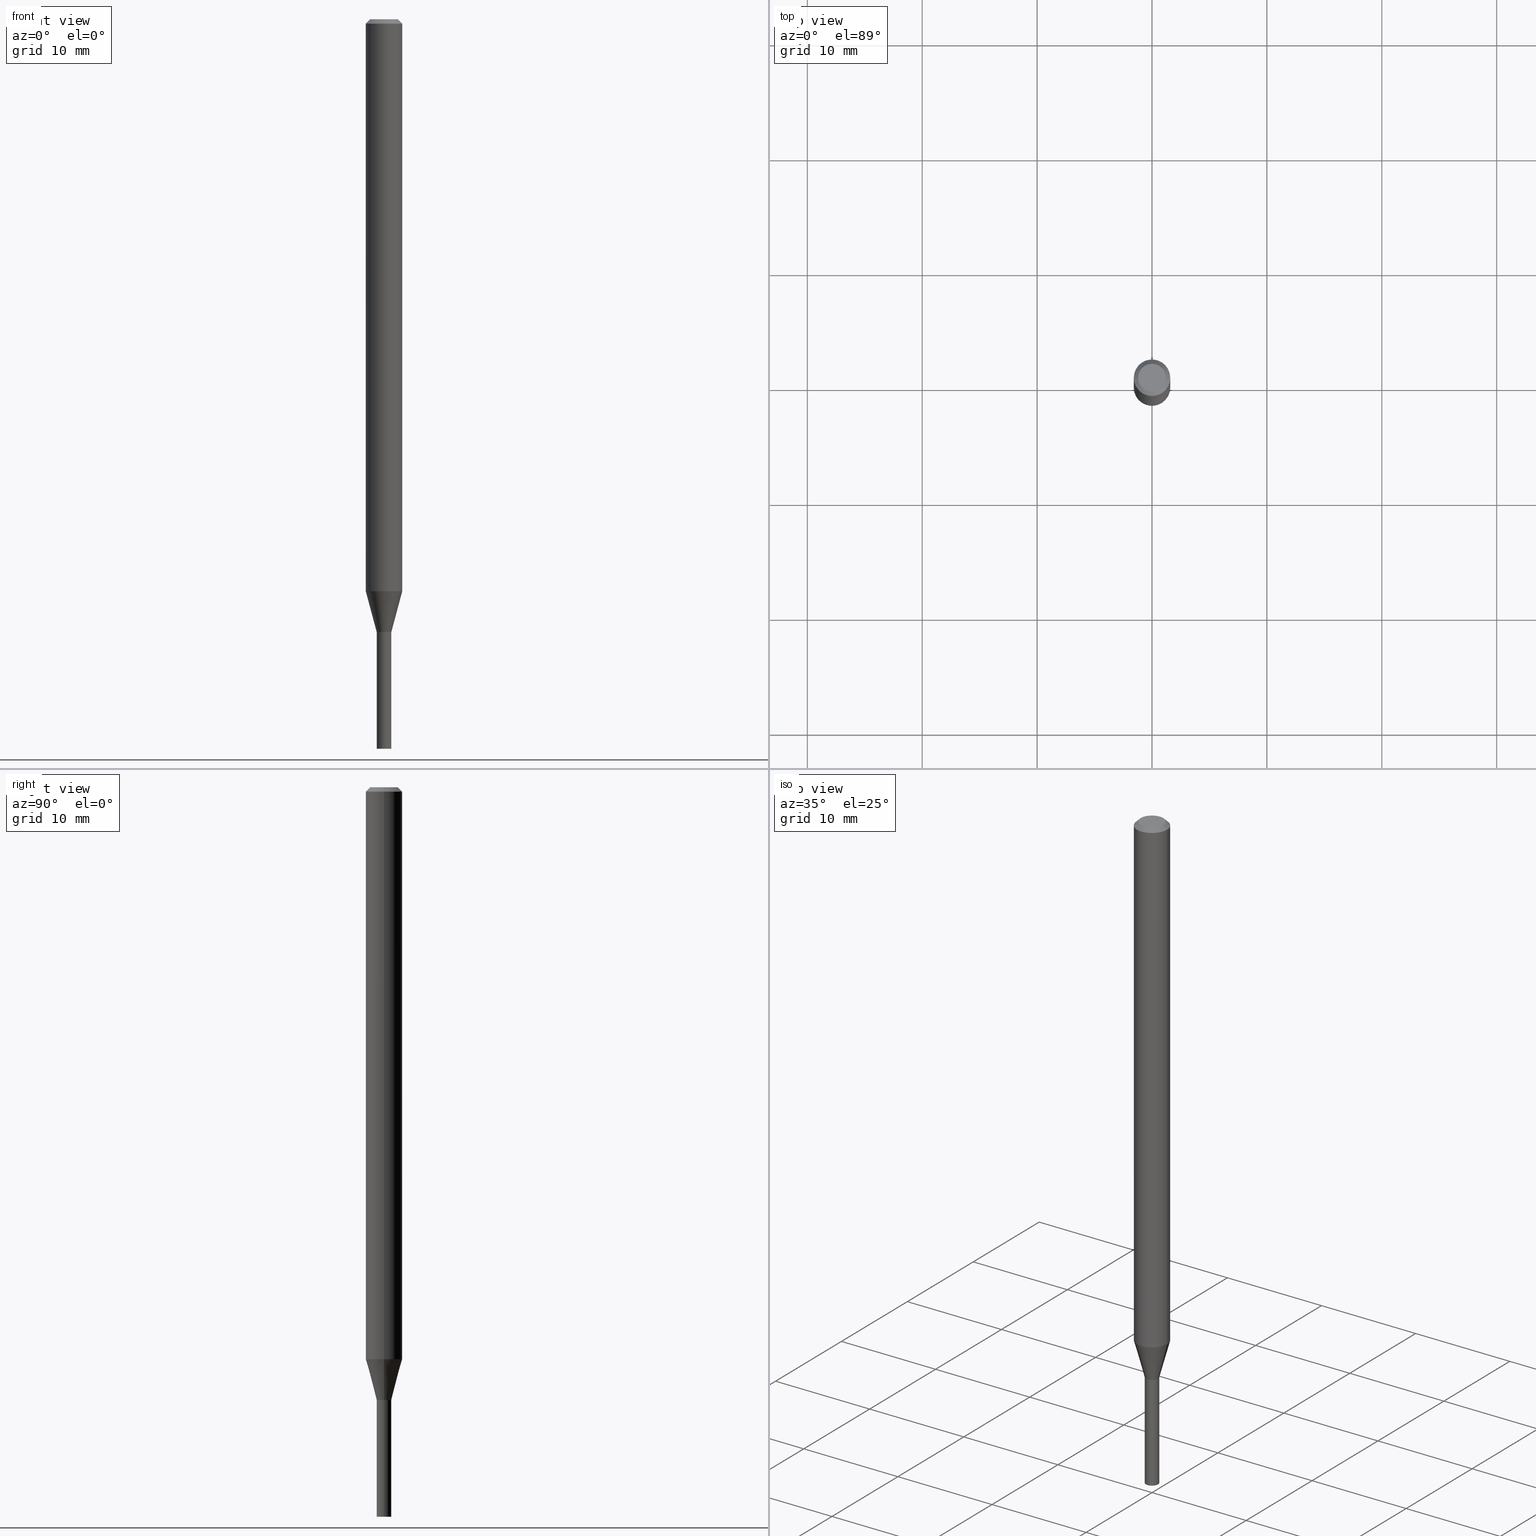
[diagram: canonical four-view strip — front | top / right | iso, engineering-drawing reading convention]
A machine part, canonical four-view strip (front | top / right | iso — engineering-drawing reading convention). The complete STEP part file that produces these views, byte-faithful:
ISO-10303-21;
HEADER;
FILE_DESCRIPTION (( 'STEP AP203' ),
    '1' );
FILE_NAME ('01265.STEP',
    '2024-03-20T00:45:13',
    ( '' ),
    ( '' ),
    'SwSTEP 2.0',
    'SolidWorks 2023',
    '' );
FILE_SCHEMA (( 'CONFIG_CONTROL_DESIGN' ));
ENDSEC;

DATA;
#1 = CLOSED_SHELL ( 'NONE', ( #166, #439, #12, #46 ) ) ;
#2 = AXIS2_PLACEMENT_3D ( 'NONE', #19, #84, #307 ) ;
#3 = DIRECTION ( 'NONE',  ( 1.000000000000000000, -6.982962677686267499E-15, 4.876176775795936353E-29 ) ) ;
#4 = ORGANIZATION ( 'UNSPECIFIED', 'UNSPECIFIED', '' ) ;
#5 = CARTESIAN_POINT ( 'NONE',  ( 3.668203209277705088E-31, -5.237222008264718399E-17, -0.01499999999999999944 ) ) ;
#6 = APPROVAL_STATUS ( 'not_yet_approved' ) ;
#7 = APPROVAL_ROLE ( '' ) ;
#8 = ORIENTED_EDGE ( 'NONE', *, *, #315, .F. ) ;
#9 = DIRECTION ( 'NONE',  ( 2.445468806185136597E-29, -3.491481338843145583E-15, -1.000000000000000000 ) ) ;
#10 = COORDINATED_UNIVERSAL_TIME_OFFSET ( 5, 0, .BEHIND. ) ;
#11 = CYLINDRICAL_SURFACE ( 'NONE', #319, 0.02499999999999992853 ) ;
#12 = ADVANCED_FACE ( 'NONE', ( #162 ), #302, .T. ) ;
#13 = PERSON_AND_ORGANIZATION_ROLE ( 'classification_officer' ) ;
#14 = AXIS2_PLACEMENT_3D ( 'NONE', #118, #80, #224 ) ;
#15 = AXIS2_PLACEMENT_3D ( 'NONE', #244, #137, #108 ) ;
#16 = CC_DESIGN_SECURITY_CLASSIFICATION ( #349, ( #87 ) ) ;
#17 = DIRECTION ( 'NONE',  ( -2.445468806185136877E-29, 3.491481338843145188E-15, 1.000000000000000000 ) ) ;
#18 = DIRECTION ( 'NONE',  ( 1.000000000000000000, -6.982962677686262766E-15, 0.000000000000000000 ) ) ;
#19 = CARTESIAN_POINT ( 'NONE',  ( 0.000000000000000000, 0.000000000000000000, 0.000000000000000000 ) ) ;
#20 = CARTESIAN_POINT ( 'NONE',  ( -0.04749999999999999362, 3.578768372314226776E-16, 9.272709596012951076E-16 ) ) ;
#21 = CARTESIAN_POINT ( 'NONE',  ( 3.668203209277705088E-31, -5.237222008264718399E-17, -0.01499999999999999944 ) ) ;
#22 = VERTEX_POINT ( 'NONE', #279 ) ;
#23 = DIRECTION ( 'NONE',  ( 2.438088387897960049E-29, -3.491481338843145188E-15, -1.000000000000000000 ) ) ;
#24 = CYLINDRICAL_SURFACE ( 'NONE', #311, 0.02499999999999992853 ) ;
#25 = CARTESIAN_POINT ( 'NONE',  ( 0.02499999999999992853, -1.745740669421561747E-16, 1.219044193948980445E-30 ) ) ;
#26 = CARTESIAN_POINT ( 'NONE',  ( 5.135484492988787526E-29, -7.332110811570605290E-15, -2.100000000000000089 ) ) ;
#27 = VECTOR ( 'NONE', #127, 39.37007874015748143 ) ;
#28 = FACE_OUTER_BOUND ( 'NONE', #97, .T. ) ;
#29 = VECTOR ( 'NONE', #17, 39.37007874015748143 ) ;
#30 = DIRECTION ( 'NONE',  ( -2.445468806185136597E-29, 3.491481338843145583E-15, 1.000000000000000000 ) ) ;
#31 = CC_DESIGN_APPROVAL ( #305, ( #442 ) ) ;
#32 = DIRECTION ( 'NONE',  ( -2.445468806185136597E-29, 3.491481338843145583E-15, 1.000000000000000000 ) ) ;
#33 = CARTESIAN_POINT ( 'NONE',  ( -0.06250000000000000000, -3.003832573159543008E-15, -0.01499999999999999944 ) ) ;
#34 =( NAMED_UNIT ( * ) SI_UNIT ( $, .STERADIAN. ) SOLID_ANGLE_UNIT ( ) );
#35 = EDGE_CURVE ( 'NONE', #195, #460, #196, .T. ) ;
#36 = CARTESIAN_POINT ( 'NONE',  ( 6.113672015462842613E-29, -8.728703347107864943E-15, -2.500000000000000000 ) ) ;
#37 = CIRCLE ( 'NONE', #416, 0.06250000000000000000 ) ;
#38 = LOCAL_TIME ( 20, 45, 13.00000000000000000, #329 ) ;
#39 = COORDINATED_UNIVERSAL_TIME_OFFSET ( 5, 0, .BEHIND. ) ;
#40 = DATE_TIME_ROLE ( 'classification_date' ) ;
#41 = EDGE_LOOP ( 'NONE', ( #425, #429, #203, #277 ) ) ;
#42 = AXIS2_PLACEMENT_3D ( 'NONE', #298, #184, #152 ) ;
#43 = CONICAL_SURFACE ( 'NONE', #440, 0.02450000000000000441, 0.7853981633969275844 ) ;
#44 =( GEOMETRIC_REPRESENTATION_CONTEXT ( 3 ) GLOBAL_UNCERTAINTY_ASSIGNED_CONTEXT ( ( #225 ) ) GLOBAL_UNIT_ASSIGNED_CONTEXT ( ( #428, #361, #34 ) ) REPRESENTATION_CONTEXT ( 'NONE', 'WORKASPACE' ) );
#45 = SHAPE_DEFINITION_REPRESENTATION ( #120, #267 ) ;
#46 = ADVANCED_FACE ( 'NONE', ( #354 ), #103, .F. ) ;
#47 = EDGE_CURVE ( 'NONE', #106, #426, #310, .T. ) ;
#48 = AXIS2_PLACEMENT_3D ( 'NONE', #448, #454, #413 ) ;
#49 = DIRECTION ( 'NONE',  ( -2.445468806185136597E-29, 3.491481338843145583E-15, 1.000000000000000000 ) ) ;
#50 = ORIENTED_EDGE ( 'NONE', *, *, #344, .F. ) ;
#51 = DIRECTION ( 'NONE',  ( -2.445468806185136877E-29, 3.491481338843145188E-15, 1.000000000000000000 ) ) ;
#52 = ORIENTED_EDGE ( 'NONE', *, *, #376, .F. ) ;
#53 = DIRECTION ( 'NONE',  ( 0.7071067811865257013, -7.319954787623181892E-15, -0.7071067811865692221 ) ) ;
#54 = ORIENTED_EDGE ( 'NONE', *, *, #346, .T. ) ;
#55 = CIRCLE ( 'NONE', #328, 0.02500000000000000139 ) ;
#56 = AXIS2_PLACEMENT_3D ( 'NONE', #447, #411, #227 ) ;
#57 = DIRECTION ( 'NONE',  ( -2.445468806185136597E-29, 3.491481338843145583E-15, 1.000000000000000000 ) ) ;
#58 = EDGE_CURVE ( 'NONE', #147, #273, #124, .T. ) ;
#59 = ORIENTED_EDGE ( 'NONE', *, *, #101, .T. ) ;
#60 = LINE ( 'NONE', #387, #179 ) ;
#61 = VERTEX_POINT ( 'NONE', #33 ) ;
#62 = CARTESIAN_POINT ( 'NONE',  ( 0.04749999999999999362, -4.035134999187561860E-16, 9.272709596013002351E-16 ) ) ;
#63 = CARTESIAN_POINT ( 'NONE',  ( 0.000000000000000000, 0.000000000000000000, 0.000000000000000000 ) ) ;
#64 = EDGE_CURVE ( 'NONE', #460, #457, #367, .T. ) ;
#65 = DIRECTION ( 'NONE',  ( -2.438088387897960049E-29, 3.491481338843145188E-15, 1.000000000000000000 ) ) ;
#66 = AXIS2_PLACEMENT_3D ( 'NONE', #306, #123, #259 ) ;
#67 = VERTEX_POINT ( 'NONE', #322 ) ;
#68 = PLANE ( 'NONE',  #15 ) ;
#69 = ORIENTED_EDGE ( 'NONE', *, *, #320, .T. ) ;
#70 = APPLICATION_CONTEXT ( 'configuration controlled 3d designs of mechanical parts and assemblies' ) ;
#71 = DESIGN_CONTEXT ( 'detailed design', #221, 'design' ) ;
#72 = EDGE_CURVE ( 'NONE', #455, #390, #219, .T. ) ;
#73 = CARTESIAN_POINT ( 'NONE',  ( 0.06250000000000000000, -4.364351673553916694E-16, 3.047610484872459871E-30 ) ) ;
#74 = CALENDAR_DATE ( 2024, 19, 3 ) ;
#75 = ORIENTED_EDGE ( 'NONE', *, *, #366, .T. ) ;
#76 = PRODUCT ( '01265', '01265', '', ( #105 ) ) ;
#77 = DIRECTION ( 'NONE',  ( 1.000000000000000000, -6.982962677686266711E-15, 4.876176775795935793E-29 ) ) ;
#78 = COORDINATED_UNIVERSAL_TIME_OFFSET ( 5, 0, .BEHIND. ) ;
#79 = AXIS2_PLACEMENT_3D ( 'NONE', #129, #232, #380 ) ;
#80 = DIRECTION ( 'NONE',  ( -2.445468806185136597E-29, 3.491481338843145583E-15, 1.000000000000000000 ) ) ;
#81 = FACE_OUTER_BOUND ( 'NONE', #269, .T. ) ;
#82 = PERSON_AND_ORGANIZATION ( #384, #4 ) ;
#83 = DIMENSIONAL_EXPONENTS ( 1.000000000000000000, 0.000000000000000000, 0.000000000000000000, 0.000000000000000000, 0.000000000000000000, 0.000000000000000000, 0.000000000000000000 ) ;
#84 = DIRECTION ( 'NONE',  ( -2.445468806185136597E-29, 3.491481338843145583E-15, 1.000000000000000000 ) ) ;
#85 = DIRECTION ( 'NONE',  ( -2.445468806185136597E-29, 3.491481338843145583E-15, 1.000000000000000000 ) ) ;
#86 = AXIS2_PLACEMENT_3D ( 'NONE', #351, #57, #153 ) ;
#87 = PRODUCT_DEFINITION_FORMATION_WITH_SPECIFIED_SOURCE ( 'ANY', '', #76, .NOT_KNOWN. ) ;
#88 = CARTESIAN_POINT ( 'NONE',  ( 0.06250000000000000000, -4.811533449433679005E-16, -0.01499999999999999944 ) ) ;
#89 = CARTESIAN_POINT ( 'NONE',  ( -0.02450000000000000441, -7.158027841309382562E-15, -2.100000000000000089 ) ) ;
#90 = FACE_OUTER_BOUND ( 'NONE', #236, .T. ) ;
#91 = ORIENTED_EDGE ( 'NONE', *, *, #282, .T. ) ;
#92 = LINE ( 'NONE', #268, #206 ) ;
#93 = ORIENTED_EDGE ( 'NONE', *, *, #376, .T. ) ;
#94 = CIRCLE ( 'NONE', #66, 0.02500000000000000139 ) ;
#95 = CARTESIAN_POINT ( 'NONE',  ( 5.135484492988787526E-29, -7.332110811570605290E-15, -2.100000000000000089 ) ) ;
#96 = ORIENTED_EDGE ( 'NONE', *, *, #372, .F. ) ;
#97 = EDGE_LOOP ( 'NONE', ( #59, #202, #102, #52 ) ) ;
#98 = EDGE_LOOP ( 'NONE', ( #54, #69, #199, #419 ) ) ;
#99 = DIRECTION ( 'NONE',  ( 1.000000000000000000, 0.000000000000000000, 0.000000000000000000 ) ) ;
#100 = ORIENTED_EDGE ( 'NONE', *, *, #35, .T. ) ;
#101 = EDGE_CURVE ( 'NONE', #67, #190, #55, .T. ) ;
#102 = ORIENTED_EDGE ( 'NONE', *, *, #212, .F. ) ;
#103 = PLANE ( 'NONE',  #42 ) ;
#104 = MANIFOLD_SOLID_BREP ( 'Body-Move/Copy2[1]', #1 ) ;
#105 = MECHANICAL_CONTEXT ( 'NONE', #70, 'mechanical' ) ;
#106 = VERTEX_POINT ( 'NONE', #453 ) ;
#107 = ADVANCED_FACE ( 'NONE', ( #237 ), #43, .T. ) ;
#108 = DIRECTION ( 'NONE',  ( 1.000000000000000000, -6.982962677686265922E-15, 4.876176775795935793E-29 ) ) ;
#109 = APPROVAL_PERSON_ORGANIZATION ( #297, #412, #7 ) ;
#110 = FACE_OUTER_BOUND ( 'NONE', #261, .T. ) ;
#111 = DIRECTION ( 'NONE',  ( -2.445468806185136597E-29, 3.491481338843145583E-15, 1.000000000000000000 ) ) ;
#112 = ADVANCED_FACE ( 'NONE', ( #340 ), #11, .F. ) ;
#113 = ORIENTED_EDGE ( 'NONE', *, *, #47, .F. ) ;
#114 = AXIS2_PLACEMENT_3D ( 'NONE', #217, #432, #430 ) ;
#115 = ADVANCED_FACE ( 'NONE', ( #81 ), #299, .T. ) ;
#116 = COORDINATED_UNIVERSAL_TIME_OFFSET ( 5, 0, .BEHIND. ) ;
#117 = CC_DESIGN_PERSON_AND_ORGANIZATION_ASSIGNMENT ( #148, #13, ( #349 ) ) ;
#118 = CARTESIAN_POINT ( 'NONE',  ( 5.135484492988787526E-29, -7.332110811570606867E-15, -2.100000000000000089 ) ) ;
#119 = CONICAL_SURFACE ( 'NONE', #434, 0.02500000000000020609, 0.2617993877991500740 ) ;
#120 = PRODUCT_DEFINITION_SHAPE ( 'NONE', 'NONE',  #442 ) ;
#121 = CALENDAR_DATE ( 2024, 19, 3 ) ;
#122 = LINE ( 'NONE', #337, #29 ) ;
#123 = DIRECTION ( 'NONE',  ( -2.445468806185136597E-29, 3.491481338843145583E-15, 1.000000000000000000 ) ) ;
#124 = LINE ( 'NONE', #177, #157 ) ;
#125 = CARTESIAN_POINT ( 'NONE',  ( 3.316907271900976096E-16, 0.04749999999999999362, 2.977901162055994392E-16 ) ) ;
#126 = APPROVAL_PERSON_ORGANIZATION ( #287, #305, #174 ) ;
#127 = DIRECTION ( 'NONE',  ( -2.445468806185136877E-29, 3.491481338843145188E-15, 1.000000000000000000 ) ) ;
#128 = ORIENTED_EDGE ( 'NONE', *, *, #72, .T. ) ;
#129 = CARTESIAN_POINT ( 'NONE',  ( 5.135484492988787526E-29, -7.332110811570606867E-15, -2.100000000000000089 ) ) ;
#130 = ORIENTED_EDGE ( 'NONE', *, *, #339, .F. ) ;
#131 = DIRECTION ( 'NONE',  ( -1.000000000000000000, 6.982962677686265922E-15, -4.876176775795935793E-29 ) ) ;
#132 = ORIENTED_EDGE ( 'NONE', *, *, #315, .T. ) ;
#133 = EDGE_CURVE ( 'NONE', #426, #460, #233, .T. ) ;
#134 = CIRCLE ( 'NONE', #167, 0.06250000000000000000 ) ;
#135 = CYLINDRICAL_SURFACE ( 'NONE', #398, 0.06250000000000000000 ) ;
#136 = ORIENTED_EDGE ( 'NONE', *, *, #207, .F. ) ;
#137 = DIRECTION ( 'NONE',  ( -2.438088387897960049E-29, 3.491481338843145188E-15, 1.000000000000000000 ) ) ;
#138 = CYLINDRICAL_SURFACE ( 'NONE', #389, 0.02500000000000000139 ) ;
#139 = ORIENTED_EDGE ( 'NONE', *, *, #344, .T. ) ;
#140 = APPLICATION_PROTOCOL_DEFINITION ( 'international standard', 'config_control_design', 1994, #221 ) ;
#141 = EDGE_CURVE ( 'NONE', #356, #388, #247, .T. ) ;
#142 = DIRECTION ( 'NONE',  ( 1.000000000000000000, -6.982962677686266711E-15, 4.876176775795935793E-29 ) ) ;
#143 = DIRECTION ( 'NONE',  ( -2.445468806185136597E-29, 3.491481338843145583E-15, 1.000000000000000000 ) ) ;
#144 = APPROVAL_DATE_TIME ( #444, #305 ) ;
#145 = EDGE_CURVE ( 'NONE', #195, #356, #325, .T. ) ;
#146 = AXIS2_PLACEMENT_3D ( 'NONE', #187, #49, #240 ) ;
#147 = VERTEX_POINT ( 'NONE', #176 ) ;
#148 = PERSON_AND_ORGANIZATION ( #384, #4 ) ;
#149 = EDGE_LOOP ( 'NONE', ( #8, #50, #161, #312 ) ) ;
#150 = CIRCLE ( 'NONE', #48, 0.06250000000000000000 ) ;
#151 = ADVANCED_FACE ( 'NONE', ( #330 ), #175, .T. ) ;
#152 = DIRECTION ( 'NONE',  ( -1.000000000000000000, 6.982962677686265922E-15, -4.876176775795935793E-29 ) ) ;
#153 = DIRECTION ( 'NONE',  ( 1.000000000000000000, -6.982962677686275388E-15, 0.000000000000000000 ) ) ;
#154 = CARTESIAN_POINT ( 'NONE',  ( 0.02500000000000020609, -7.506684878512763535E-15, -2.100000000000000089 ) ) ;
#155 = FACE_OUTER_BOUND ( 'NONE', #266, .T. ) ;
#156 = EDGE_LOOP ( 'NONE', ( #464, #132, #401, #170 ) ) ;
#157 = VECTOR ( 'NONE', #169, 39.37007874015747433 ) ;
#158 = ORIENTED_EDGE ( 'NONE', *, *, #141, .T. ) ;
#159 = CIRCLE ( 'NONE', #56, 0.02500000000000000139 ) ;
#160 = CARTESIAN_POINT ( 'NONE',  ( -0.06250000000000000000, 4.440892098500626162E-16, -3.074334431409316114E-30 ) ) ;
#161 = ORIENTED_EDGE ( 'NONE', *, *, #296, .T. ) ;
#162 = FACE_OUTER_BOUND ( 'NONE', #343, .T. ) ;
#163 = DIRECTION ( 'NONE',  ( 1.000000000000000000, -6.982962677686254878E-15, 0.000000000000000000 ) ) ;
#164 = ORIENTED_EDGE ( 'NONE', *, *, #200, .T. ) ;
#165 = EDGE_CURVE ( 'NONE', #457, #460, #338, .T. ) ;
#166 = ADVANCED_FACE ( 'NONE', ( #28 ), #138, .T. ) ;
#167 = AXIS2_PLACEMENT_3D ( 'NONE', #193, #238, #18 ) ;
#168 = LENGTH_MEASURE_WITH_UNIT ( LENGTH_MEASURE( 0.02539999999999999897 ), #362 );
#169 = DIRECTION ( 'NONE',  ( -0.2588190451025213501, 5.211531920934551042E-15, 0.9659258262890682012 ) ) ;
#170 = ORIENTED_EDGE ( 'NONE', *, *, #296, .F. ) ;
#171 = CARTESIAN_POINT ( 'NONE',  ( 0.02499999999999965791, -7.504939137843339665E-15, -2.099499999999999922 ) ) ;
#172 = CARTESIAN_POINT ( 'NONE',  ( 0.000000000000000000, 0.000000000000000000, 0.000000000000000000 ) ) ;
#173 = DIRECTION ( 'NONE',  ( 1.000000000000000000, -6.982962677686273810E-15, 0.000000000000000000 ) ) ;
#174 = APPROVAL_ROLE ( '' ) ;
#175 = CONICAL_SURFACE ( 'NONE', #263, 0.06250000000000000000, 0.7853981633974175258 ) ;
#176 = CARTESIAN_POINT ( 'NONE',  ( -0.02500000000000020609, -6.776928631858541016E-15, -2.100000000000000089 ) ) ;
#177 = CARTESIAN_POINT ( 'NONE',  ( -0.02500000000000020609, -7.154475127630579297E-15, -2.100000000000000089 ) ) ;
#178 = ORIENTED_EDGE ( 'NONE', *, *, #145, .T. ) ;
#179 = VECTOR ( 'NONE', #345, 39.37007874015748854 ) ;
#180 = EDGE_LOOP ( 'NONE', ( #139, #128 ) ) ;
#181 = PERSON_AND_ORGANIZATION_ROLE ( 'creator' ) ;
#182 = CALENDAR_DATE ( 2024, 19, 3 ) ;
#183 = ORIENTED_EDGE ( 'NONE', *, *, #320, .F. ) ;
#184 = DIRECTION ( 'NONE',  ( 2.438088387897960049E-29, -3.491481338843145188E-15, -1.000000000000000000 ) ) ;
#185 = CIRCLE ( 'NONE', #86, 0.02500000000000020609 ) ;
#186 = LINE ( 'NONE', #160, #239 ) ;
#187 = CARTESIAN_POINT ( 'NONE',  ( 5.135484492988787526E-29, -7.332110811570606867E-15, -2.100000000000000089 ) ) ;
#188 = DIRECTION ( 'NONE',  ( 0.7071067811861793118, -2.468850131078399925E-15, 0.7071067811869157227 ) ) ;
#189 = CARTESIAN_POINT ( 'NONE',  ( -0.06249999999999999306, -6.399382136086501158E-15, -1.960048094716168254 ) ) ;
#190 = VERTEX_POINT ( 'NONE', #323 ) ;
#191 = VECTOR ( 'NONE', #188, 39.37007874015748143 ) ;
#192 = LOCAL_TIME ( 20, 45, 13.00000000000000000, #39 ) ;
#193 = CARTESIAN_POINT ( 'NONE',  ( 4.793236474250999839E-29, -6.843471345936563774E-15, -1.960048094716168254 ) ) ;
#194 = ORIENTED_EDGE ( 'NONE', *, *, #352, .F. ) ;
#195 = VERTEX_POINT ( 'NONE', #154 ) ;
#196 = LINE ( 'NONE', #25, #205 ) ;
#197 = DIRECTION ( 'NONE',  ( -2.445468806185136597E-29, 3.491481338843145583E-15, 1.000000000000000000 ) ) ;
#198 = CARTESIAN_POINT ( 'NONE',  ( 0.02500000000000000139, -7.506684878512761957E-15, -2.100000000000000089 ) ) ;
#199 = ORIENTED_EDGE ( 'NONE', *, *, #241, .F. ) ;
#200 = EDGE_CURVE ( 'NONE', #106, #457, #260, .T. ) ;
#201 = FACE_OUTER_BOUND ( 'NONE', #397, .T. ) ;
#202 = ORIENTED_EDGE ( 'NONE', *, *, #207, .T. ) ;
#203 = ORIENTED_EDGE ( 'NONE', *, *, #133, .T. ) ;
#204 = DIRECTION ( 'NONE',  ( -2.445468806185136877E-29, 3.491481338843145188E-15, 1.000000000000000000 ) ) ;
#205 = VECTOR ( 'NONE', #204, 39.37007874015748143 ) ;
#206 = VECTOR ( 'NONE', #51, 39.37007874015748143 ) ;
#207 = EDGE_CURVE ( 'NONE', #190, #22, #122, .T. ) ;
#208 = DIRECTION ( 'NONE',  ( 1.000000000000000000, -6.982962677686275388E-15, 0.000000000000000000 ) ) ;
#209 = DIRECTION ( 'NONE',  ( 1.000000000000000000, -6.982962677686267499E-15, 4.852736867747366768E-29 ) ) ;
#210 = ORIENTED_EDGE ( 'NONE', *, *, #58, .T. ) ;
#211 = APPROVAL_STATUS ( 'not_yet_approved' ) ;
#212 = EDGE_CURVE ( 'NONE', #314, #22, #159, .T. ) ;
#213 = CARTESIAN_POINT ( 'NONE',  ( -0.02499999999999965791, -7.152729386961161737E-15, -2.099499999999999922 ) ) ;
#214 = AXIS2_PLACEMENT_3D ( 'NONE', #437, #462, #280 ) ;
#215 = PRODUCT_RELATED_PRODUCT_CATEGORY ( 'detail', '', ( #76 ) ) ;
#216 = CC_DESIGN_PERSON_AND_ORGANIZATION_ASSIGNMENT ( #300, #258, ( #442 ) ) ;
#217 = CARTESIAN_POINT ( 'NONE',  ( 5.134261758585694724E-29, -7.330365070901184575E-15, -2.099499999999999922 ) ) ;
#218 = APPROVAL_DATE_TIME ( #443, #412 ) ;
#219 = CIRCLE ( 'NONE', #274, 0.04749999999999999362 ) ;
#220 = CIRCLE ( 'NONE', #275, 0.02500000000000020609 ) ;
#221 = APPLICATION_CONTEXT ( 'configuration controlled 3d designs of mechanical parts and assemblies' ) ;
#222 = LOCAL_TIME ( 20, 45, 13.00000000000000000, #78 ) ;
#223 = ADVANCED_FACE ( 'NONE', ( #415 ), #228, .F. ) ;
#224 = DIRECTION ( 'NONE',  ( 1.000000000000000000, -6.982962677686272233E-15, 0.000000000000000000 ) ) ;
#225 = UNCERTAINTY_MEASURE_WITH_UNIT (LENGTH_MEASURE( 1.000000000000000082E-05 ), #428, 'distance_accuracy_value', 'NONE');
#226 = PERSON_AND_ORGANIZATION ( #384, #4 ) ;
#227 = DIRECTION ( 'NONE',  ( 1.000000000000000000, -6.982962677686254878E-15, 0.000000000000000000 ) ) ;
#228 = PLANE ( 'NONE',  #229 ) ;
#229 = AXIS2_PLACEMENT_3D ( 'NONE', #125, #23, #131 ) ;
#230 = ADVANCED_FACE ( 'NONE', ( #155 ), #119, .T. ) ;
#231 = VECTOR ( 'NONE', #364, 39.37007874015747433 ) ;
#232 = DIRECTION ( 'NONE',  ( -2.445468806185136597E-29, 3.491481338843145583E-15, 1.000000000000000000 ) ) ;
#233 = LINE ( 'NONE', #382, #191 ) ;
#234 = CC_DESIGN_PERSON_AND_ORGANIZATION_ASSIGNMENT ( #82, #181, ( #87 ) ) ;
#235 = DIRECTION ( 'NONE',  ( 1.000000000000000000, -6.982962677686266711E-15, 4.876176775795935793E-29 ) ) ;
#236 = EDGE_LOOP ( 'NONE', ( #130, #371, #358, #391 ) ) ;
#237 = FACE_OUTER_BOUND ( 'NONE', #427, .T. ) ;
#238 = DIRECTION ( 'NONE',  ( -2.445468806185136597E-29, 3.491481338843145583E-15, 1.000000000000000000 ) ) ;
#239 = VECTOR ( 'NONE', #317, 39.37007874015748143 ) ;
#240 = DIRECTION ( 'NONE',  ( 1.000000000000000000, -6.982962677686272233E-15, 0.000000000000000000 ) ) ;
#241 = EDGE_CURVE ( 'NONE', #388, #61, #451, .T. ) ;
#242 = ORIENTED_EDGE ( 'NONE', *, *, #288, .T. ) ;
#243 = ORIENTED_EDGE ( 'NONE', *, *, #58, .F. ) ;
#244 = CARTESIAN_POINT ( 'NONE',  ( 6.194428952736783458E-29, -8.613054816532157721E-15, -2.500000000000000000 ) ) ;
#245 = DIRECTION ( 'NONE',  ( -2.445468806185136597E-29, 3.491481338843145583E-15, 1.000000000000000000 ) ) ;
#246 = EDGE_CURVE ( 'NONE', #147, #457, #341, .T. ) ;
#247 = LINE ( 'NONE', #73, #446 ) ;
#248 = CONICAL_SURFACE ( 'NONE', #146, 0.02450000000000000441, 0.7853981633969275844 ) ;
#249 = AXIS2_PLACEMENT_3D ( 'NONE', #326, #459, #99 ) ;
#250 = DIRECTION ( 'NONE',  ( 1.000000000000000000, -6.982962677686265922E-15, 4.876176775795935793E-29 ) ) ;
#251 = DIRECTION ( 'NONE',  ( 1.000000000000000000, -6.982962677686275388E-15, 0.000000000000000000 ) ) ;
#252 = APPROVAL_ROLE ( '' ) ;
#253 = CIRCLE ( 'NONE', #359, 0.04749999999999999362 ) ;
#254 = AXIS2_PLACEMENT_3D ( 'NONE', #369, #32, #251 ) ;
#255 = ADVANCED_FACE ( 'NONE', ( #90 ), #24, .F. ) ;
#256 = DATE_AND_TIME ( #182, #335 ) ;
#257 = VECTOR ( 'NONE', #414, 39.37007874015748143 ) ;
#258 = PERSON_AND_ORGANIZATION_ROLE ( 'creator' ) ;
#259 = DIRECTION ( 'NONE',  ( 1.000000000000000000, -6.982962677686254878E-15, 0.000000000000000000 ) ) ;
#260 = LINE ( 'NONE', #89, #257 ) ;
#261 = EDGE_LOOP ( 'NONE', ( #350, #381 ) ) ;
#262 = LINE ( 'NONE', #88, #407 ) ;
#263 = AXIS2_PLACEMENT_3D ( 'NONE', #5, #9, #331 ) ;
#264 = APPROVAL ( #6, 'UNSPECIFIED' ) ;
#265 = CARTESIAN_POINT ( 'NONE',  ( 5.135484492988787526E-29, -7.332110811570605290E-15, -2.100000000000000089 ) ) ;
#266 = EDGE_LOOP ( 'NONE', ( #243, #278, #178, #353 ) ) ;
#267 = ADVANCED_BREP_SHAPE_REPRESENTATION ( '01265', ( #104, #409, #249 ), #44 ) ;
#268 = CARTESIAN_POINT ( 'NONE',  ( 0.02500000000000000139, -1.745740669421566924E-16, 1.219044193948984123E-30 ) ) ;
#269 = EDGE_LOOP ( 'NONE', ( #183, #91, #158, #194 ) ) ;
#270 = ADVANCED_FACE ( 'NONE', ( #417 ), #248, .T. ) ;
#271 = CARTESIAN_POINT ( 'NONE',  ( 5.135484492988787526E-29, -7.332110811570606867E-15, -2.100000000000000089 ) ) ;
#272 = DIRECTION ( 'NONE',  ( -2.445468806185136597E-29, 3.491481338843145583E-15, 1.000000000000000000 ) ) ;
#273 = VERTEX_POINT ( 'NONE', #189 ) ;
#274 = AXIS2_PLACEMENT_3D ( 'NONE', #463, #143, #209 ) ;
#275 = AXIS2_PLACEMENT_3D ( 'NONE', #436, #111, #208 ) ;
#276 = CARTESIAN_POINT ( 'NONE',  ( 0.02450000000000000441, -7.503193397173920528E-15, -2.100000000000000089 ) ) ;
#277 = ORIENTED_EDGE ( 'NONE', *, *, #165, .F. ) ;
#278 = ORIENTED_EDGE ( 'NONE', *, *, #339, .T. ) ;
#279 = CARTESIAN_POINT ( 'NONE',  ( -0.02500000000000000139, -7.852771395399210701E-15, -2.100000000000000089 ) ) ;
#280 = DIRECTION ( 'NONE',  ( -1.000000000000000000, 6.982962677686266711E-15, 0.000000000000000000 ) ) ;
#281 = ORIENTED_EDGE ( 'NONE', *, *, #346, .F. ) ;
#282 = EDGE_CURVE ( 'NONE', #273, #356, #134, .T. ) ;
#283 = DIRECTION ( 'NONE',  ( -2.445468806185136597E-29, 3.491481338843145583E-15, 1.000000000000000000 ) ) ;
#284 = CC_DESIGN_PERSON_AND_ORGANIZATION_ASSIGNMENT ( #226, #438, ( #87 ) ) ;
#285 = CARTESIAN_POINT ( 'NONE',  ( 0.02500000000000020609, -7.506684878512763535E-15, -2.100000000000000089 ) ) ;
#286 = CLOSED_SHELL ( 'NONE', ( #255, #107, #408, #404, #458, #230, #115, #151, #223, #435, #270, #112 ) ) ;
#287 = PERSON_AND_ORGANIZATION ( #384, #4 ) ;
#288 = EDGE_CURVE ( 'NONE', #22, #314, #402, .T. ) ;
#289 = DIRECTION ( 'NONE',  ( -2.445468806185136597E-29, 3.491481338843145583E-15, 1.000000000000000000 ) ) ;
#290 = FACE_OUTER_BOUND ( 'NONE', #156, .T. ) ;
#291 = DIRECTION ( 'NONE',  ( -2.445468806185136877E-29, 3.491481338843145188E-15, 1.000000000000000000 ) ) ;
#292 = SECURITY_CLASSIFICATION_LEVEL ( 'unclassified' ) ;
#293 = AXIS2_PLACEMENT_3D ( 'NONE', #95, #385, #163 ) ;
#294 = ORIENTED_EDGE ( 'NONE', *, *, #212, .T. ) ;
#295 = DIRECTION ( 'NONE',  ( -2.445468806185136597E-29, 3.491481338843145583E-15, 1.000000000000000000 ) ) ;
#296 = EDGE_CURVE ( 'NONE', #390, #61, #60, .T. ) ;
#297 = PERSON_AND_ORGANIZATION ( #384, #4 ) ;
#298 = CARTESIAN_POINT ( 'NONE',  ( 1.745740669422079930E-16, 0.02499999999999267045, -2.100000000000000089 ) ) ;
#299 = CYLINDRICAL_SURFACE ( 'NONE', #2, 0.06250000000000000000 ) ;
#300 = PERSON_AND_ORGANIZATION ( #384, #4 ) ;
#301 = DATE_AND_TIME ( #74, #222 ) ;
#302 = CYLINDRICAL_SURFACE ( 'NONE', #347, 0.02500000000000000139 ) ;
#303 = DIRECTION ( 'NONE',  ( -2.445468806185136597E-29, 3.491481338843145583E-15, 1.000000000000000000 ) ) ;
#304 = CARTESIAN_POINT ( 'NONE',  ( 0.000000000000000000, 0.000000000000000000, 0.000000000000000000 ) ) ;
#305 = APPROVAL ( #211, 'UNSPECIFIED' ) ;
#306 = CARTESIAN_POINT ( 'NONE',  ( 6.113672015462842613E-29, -8.728703347107864943E-15, -2.500000000000000000 ) ) ;
#307 = DIRECTION ( 'NONE',  ( 1.000000000000000000, -6.982962677686266711E-15, 4.876176775795935793E-29 ) ) ;
#308 = ORIENTED_EDGE ( 'NONE', *, *, #133, .F. ) ;
#309 = DIRECTION ( 'NONE',  ( 1.000000000000000000, -6.982962677686266711E-15, 0.000000000000000000 ) ) ;
#310 = CIRCLE ( 'NONE', #14, 0.02450000000000000441 ) ;
#311 = AXIS2_PLACEMENT_3D ( 'NONE', #452, #272, #235 ) ;
#312 = ORIENTED_EDGE ( 'NONE', *, *, #352, .T. ) ;
#313 = DIRECTION ( 'NONE',  ( -2.445468806185136597E-29, 3.491481338843145583E-15, 1.000000000000000000 ) ) ;
#314 = VERTEX_POINT ( 'NONE', #198 ) ;
#315 = EDGE_CURVE ( 'NONE', #455, #388, #262, .T. ) ;
#316 = ORIENTED_EDGE ( 'NONE', *, *, #64, .F. ) ;
#317 = DIRECTION ( 'NONE',  ( -2.445468806185136877E-29, 3.491481338843145188E-15, 1.000000000000000000 ) ) ;
#318 = EDGE_LOOP ( 'NONE', ( #420, #383, #100, #422 ) ) ;
#319 = AXIS2_PLACEMENT_3D ( 'NONE', #445, #295, #77 ) ;
#320 = EDGE_CURVE ( 'NONE', #273, #61, #186, .T. ) ;
#321 = PLANE ( 'NONE',  #368 ) ;
#322 = CARTESIAN_POINT ( 'NONE',  ( 0.02500000000000000139, -8.903277414050021610E-15, -2.500000000000000000 ) ) ;
#323 = CARTESIAN_POINT ( 'NONE',  ( -0.02500000000000000139, -7.852771395399210701E-15, -2.500000000000000000 ) ) ;
#324 = CC_DESIGN_DATE_AND_TIME_ASSIGNMENT ( #256, #332, ( #442 ) ) ;
#325 = LINE ( 'NONE', #285, #231 ) ;
#326 = CARTESIAN_POINT ( 'NONE',  ( 0.000000000000000000, 0.000000000000000000, 0.000000000000000000 ) ) ;
#327 = CARTESIAN_POINT ( 'NONE',  ( 5.134261758585694724E-29, -7.330365070901184575E-15, -2.099499999999999922 ) ) ;
#328 = AXIS2_PLACEMENT_3D ( 'NONE', #36, #283, #396 ) ;
#329 = COORDINATED_UNIVERSAL_TIME_OFFSET ( 5, 0, .BEHIND. ) ;
#330 = FACE_OUTER_BOUND ( 'NONE', #149, .T. ) ;
#331 = DIRECTION ( 'NONE',  ( -1.000000000000000000, 6.982962677686266711E-15, 0.000000000000000000 ) ) ;
#332 = DATE_TIME_ROLE ( 'creation_date' ) ;
#333 = ORIENTED_EDGE ( 'NONE', *, *, #450, .T. ) ;
#334 = CIRCLE ( 'NONE', #79, 0.02450000000000000441 ) ;
#335 = LOCAL_TIME ( 20, 45, 13.00000000000000000, #10 ) ;
#336 = PERSON_AND_ORGANIZATION ( #384, #4 ) ;
#337 = CARTESIAN_POINT ( 'NONE',  ( -0.02500000000000000139, 1.776356839400250563E-16, -1.229733772563726656E-30 ) ) ;
#338 = CIRCLE ( 'NONE', #114, 0.02499999999999965791 ) ;
#339 = EDGE_CURVE ( 'NONE', #147, #195, #185, .T. ) ;
#340 = FACE_OUTER_BOUND ( 'NONE', #318, .T. ) ;
#341 = LINE ( 'NONE', #418, #27 ) ;
#342 = CARTESIAN_POINT ( 'NONE',  ( 0.06250000000000000000, -4.888073874380388472E-16, -0.01499999999999999944 ) ) ;
#343 = EDGE_LOOP ( 'NONE', ( #136, #75, #93, #424 ) ) ;
#344 = EDGE_CURVE ( 'NONE', #390, #455, #253, .T. ) ;
#345 = DIRECTION ( 'NONE',  ( -0.7071067811865257013, 2.468850131082028685E-15, -0.7071067811865692221 ) ) ;
#346 = EDGE_CURVE ( 'NONE', #356, #273, #37, .T. ) ;
#347 = AXIS2_PLACEMENT_3D ( 'NONE', #304, #245, #3 ) ;
#348 = CONICAL_SURFACE ( 'NONE', #254, 0.02500000000000020609, 0.2617993877991500740 ) ;
#349 = SECURITY_CLASSIFICATION ( '', '', #292 ) ;
#350 = ORIENTED_EDGE ( 'NONE', *, *, #101, .F. ) ;
#351 = CARTESIAN_POINT ( 'NONE',  ( 5.135484492988787526E-29, -7.332110811570605290E-15, -2.100000000000000089 ) ) ;
#352 = EDGE_CURVE ( 'NONE', #61, #388, #150, .T. ) ;
#353 = ORIENTED_EDGE ( 'NONE', *, *, #282, .F. ) ;
#354 = FACE_OUTER_BOUND ( 'NONE', #466, .T. ) ;
#355 = CARTESIAN_POINT ( 'NONE',  ( -2.267612206586331395E-44, 3.237549251499107077E-30, 9.272709596012976713E-16 ) ) ;
#356 = VERTEX_POINT ( 'NONE', #377 ) ;
#357 = FACE_OUTER_BOUND ( 'NONE', #386, .T. ) ;
#358 = ORIENTED_EDGE ( 'NONE', *, *, #165, .T. ) ;
#359 = AXIS2_PLACEMENT_3D ( 'NONE', #355, #313, #456 ) ;
#360 = CC_DESIGN_PERSON_AND_ORGANIZATION_ASSIGNMENT ( #400, #431, ( #76 ) ) ;
#361 =( NAMED_UNIT ( * ) PLANE_ANGLE_UNIT ( ) SI_UNIT ( $, .RADIAN. ) );
#362 =( LENGTH_UNIT ( ) NAMED_UNIT ( * ) SI_UNIT ( $, .METRE. ) );
#363 = DIRECTION ( 'NONE',  ( 1.000000000000000000, -6.982962677686267499E-15, 4.876176775795936353E-29 ) ) ;
#364 = DIRECTION ( 'NONE',  ( 0.2588190451025213501, 1.565188264969621968E-15, 0.9659258262890682012 ) ) ;
#365 = FACE_OUTER_BOUND ( 'NONE', #98, .T. ) ;
#366 = EDGE_CURVE ( 'NONE', #190, #67, #94, .T. ) ;
#367 = CIRCLE ( 'NONE', #433, 0.02499999999999965791 ) ;
#368 = AXIS2_PLACEMENT_3D ( 'NONE', #26, #65, #250 ) ;
#369 = CARTESIAN_POINT ( 'NONE',  ( 5.135484492988787526E-29, -7.332110811570605290E-15, -2.100000000000000089 ) ) ;
#370 = CALENDAR_DATE ( 2024, 19, 3 ) ;
#371 = ORIENTED_EDGE ( 'NONE', *, *, #246, .T. ) ;
#372 = EDGE_CURVE ( 'NONE', #426, #106, #334, .T. ) ;
#373 = CALENDAR_DATE ( 2024, 19, 3 ) ;
#374 = DATE_AND_TIME ( #370, #399 ) ;
#375 = CONICAL_SURFACE ( 'NONE', #214, 0.06250000000000000000, 0.7853981633974175258 ) ;
#376 = EDGE_CURVE ( 'NONE', #67, #314, #92, .T. ) ;
#377 = CARTESIAN_POINT ( 'NONE',  ( 0.06249999999999999306, -7.279906513291955444E-15, -1.960048094716168254 ) ) ;
#378 = AXIS2_PLACEMENT_3D ( 'NONE', #21, #303, #309 ) ;
#379 = CC_DESIGN_APPROVAL ( #264, ( #87 ) ) ;
#380 = DIRECTION ( 'NONE',  ( 1.000000000000000000, -6.982962677686272233E-15, 0.000000000000000000 ) ) ;
#381 = ORIENTED_EDGE ( 'NONE', *, *, #366, .F. ) ;
#382 = CARTESIAN_POINT ( 'NONE',  ( 0.02450000000000000441, -7.503193397173920528E-15, -2.100000000000000089 ) ) ;
#383 = ORIENTED_EDGE ( 'NONE', *, *, #450, .F. ) ;
#384 = PERSON ( 'UNSPECIFIED', 'UNSPECIFIED', 'UNSPECIFIED', ('UNSPECIFIED'), ('UNSPECIFIED'), ('UNSPECIFIED') ) ;
#385 = DIRECTION ( 'NONE',  ( -2.445468806185136597E-29, 3.491481338843145583E-15, 1.000000000000000000 ) ) ;
#386 = EDGE_LOOP ( 'NONE', ( #96, #113 ) ) ;
#387 = CARTESIAN_POINT ( 'NONE',  ( -0.06250000000000000000, 3.840629472727444916E-16, -0.01499999999999999944 ) ) ;
#388 = VERTEX_POINT ( 'NONE', #342 ) ;
#389 = AXIS2_PLACEMENT_3D ( 'NONE', #63, #30, #363 ) ;
#390 = VERTEX_POINT ( 'NONE', #20 ) ;
#391 = ORIENTED_EDGE ( 'NONE', *, *, #35, .F. ) ;
#392 = DIRECTION ( 'NONE',  ( 1.000000000000000000, -6.982962677686275388E-15, 0.000000000000000000 ) ) ;
#393 = ORIENTED_EDGE ( 'NONE', *, *, #372, .T. ) ;
#394 = CC_DESIGN_DATE_AND_TIME_ASSIGNMENT ( #301, #40, ( #349 ) ) ;
#395 = APPLICATION_PROTOCOL_DEFINITION ( 'international standard', 'config_control_design', 1994, #70 ) ;
#396 = DIRECTION ( 'NONE',  ( 1.000000000000000000, -6.982962677686254878E-15, 0.000000000000000000 ) ) ;
#397 = EDGE_LOOP ( 'NONE', ( #333, #210, #281, #461 ) ) ;
#398 = AXIS2_PLACEMENT_3D ( 'NONE', #172, #465, #142 ) ;
#399 = LOCAL_TIME ( 20, 45, 13.00000000000000000, #116 ) ;
#400 = PERSON_AND_ORGANIZATION ( #384, #4 ) ;
#401 = ORIENTED_EDGE ( 'NONE', *, *, #241, .T. ) ;
#402 = CIRCLE ( 'NONE', #293, 0.02500000000000000139 ) ;
#403 = APPROVAL_PERSON_ORGANIZATION ( #336, #264, #252 ) ;
#404 = ADVANCED_FACE ( 'NONE', ( #365 ), #135, .T. ) ;
#405 = APPROVAL_STATUS ( 'not_yet_approved' ) ;
#406 = DIRECTION ( 'NONE',  ( 1.000000000000000000, -6.982962677686272233E-15, 0.000000000000000000 ) ) ;
#407 = VECTOR ( 'NONE', #53, 39.37007874015748854 ) ;
#408 = ADVANCED_FACE ( 'NONE', ( #290 ), #375, .T. ) ;
#409 = MANIFOLD_SOLID_BREP ( 'Body-Move/Copy2[2]', #286 ) ;
#410 = APPROVAL_DATE_TIME ( #374, #264 ) ;
#411 = DIRECTION ( 'NONE',  ( -2.445468806185136597E-29, 3.491481338843145583E-15, 1.000000000000000000 ) ) ;
#412 = APPROVAL ( #405, 'UNSPECIFIED' ) ;
#413 = DIRECTION ( 'NONE',  ( 1.000000000000000000, -6.982962677686266711E-15, 0.000000000000000000 ) ) ;
#414 = DIRECTION ( 'NONE',  ( -0.7071067811861793118, 7.493145998869024141E-15, 0.7071067811869157227 ) ) ;
#415 = FACE_OUTER_BOUND ( 'NONE', #180, .T. ) ;
#416 = AXIS2_PLACEMENT_3D ( 'NONE', #449, #85, #421 ) ;
#417 = FACE_OUTER_BOUND ( 'NONE', #41, .T. ) ;
#418 = CARTESIAN_POINT ( 'NONE',  ( -0.02499999999999992853, 1.776356839400245386E-16, -1.229733772563722977E-30 ) ) ;
#419 = ORIENTED_EDGE ( 'NONE', *, *, #141, .F. ) ;
#420 = ORIENTED_EDGE ( 'NONE', *, *, #246, .F. ) ;
#421 = DIRECTION ( 'NONE',  ( 1.000000000000000000, -6.982962677686262766E-15, 0.000000000000000000 ) ) ;
#422 = ORIENTED_EDGE ( 'NONE', *, *, #64, .T. ) ;
#423 = DIRECTION ( 'NONE',  ( -2.445468806185136597E-29, 3.491481338843145583E-15, 1.000000000000000000 ) ) ;
#424 = ORIENTED_EDGE ( 'NONE', *, *, #288, .F. ) ;
#425 = ORIENTED_EDGE ( 'NONE', *, *, #200, .F. ) ;
#426 = VERTEX_POINT ( 'NONE', #276 ) ;
#427 = EDGE_LOOP ( 'NONE', ( #393, #164, #316, #308 ) ) ;
#428 =( CONVERSION_BASED_UNIT ( 'INCH', #168 ) LENGTH_UNIT ( ) NAMED_UNIT ( #83 ) );
#429 = ORIENTED_EDGE ( 'NONE', *, *, #47, .T. ) ;
#430 = DIRECTION ( 'NONE',  ( 1.000000000000000000, -6.982962677686273810E-15, 0.000000000000000000 ) ) ;
#431 = PERSON_AND_ORGANIZATION_ROLE ( 'design_owner' ) ;
#432 = DIRECTION ( 'NONE',  ( -2.445468806185136597E-29, 3.491481338843145583E-15, 1.000000000000000000 ) ) ;
#433 = AXIS2_PLACEMENT_3D ( 'NONE', #327, #289, #173 ) ;
#434 = AXIS2_PLACEMENT_3D ( 'NONE', #265, #423, #392 ) ;
#435 = ADVANCED_FACE ( 'NONE', ( #357 ), #321, .F. ) ;
#436 = CARTESIAN_POINT ( 'NONE',  ( 5.135484492988787526E-29, -7.332110811570605290E-15, -2.100000000000000089 ) ) ;
#437 = CARTESIAN_POINT ( 'NONE',  ( 3.668203209277705088E-31, -5.237222008264718399E-17, -0.01499999999999999944 ) ) ;
#438 = PERSON_AND_ORGANIZATION_ROLE ( 'design_supplier' ) ;
#439 = ADVANCED_FACE ( 'NONE', ( #110 ), #68, .F. ) ;
#440 = AXIS2_PLACEMENT_3D ( 'NONE', #271, #197, #406 ) ;
#441 = CC_DESIGN_APPROVAL ( #412, ( #349 ) ) ;
#442 = PRODUCT_DEFINITION ( 'UNKNOWN', '', #87, #71 ) ;
#443 = DATE_AND_TIME ( #373, #192 ) ;
#444 = DATE_AND_TIME ( #121, #38 ) ;
#445 = CARTESIAN_POINT ( 'NONE',  ( 0.000000000000000000, 0.000000000000000000, 0.000000000000000000 ) ) ;
#446 = VECTOR ( 'NONE', #291, 39.37007874015748143 ) ;
#447 = CARTESIAN_POINT ( 'NONE',  ( 5.135484492988787526E-29, -7.332110811570605290E-15, -2.100000000000000089 ) ) ;
#448 = CARTESIAN_POINT ( 'NONE',  ( 3.668203209277705088E-31, -5.237222008264718399E-17, -0.01499999999999999944 ) ) ;
#449 = CARTESIAN_POINT ( 'NONE',  ( 4.793236474250999839E-29, -6.843471345936563774E-15, -1.960048094716168254 ) ) ;
#450 = EDGE_CURVE ( 'NONE', #195, #147, #220, .T. ) ;
#451 = CIRCLE ( 'NONE', #378, 0.06250000000000000000 ) ;
#452 = CARTESIAN_POINT ( 'NONE',  ( 0.000000000000000000, 0.000000000000000000, 0.000000000000000000 ) ) ;
#453 = CARTESIAN_POINT ( 'NONE',  ( -0.02450000000000000441, -7.155378614135272149E-15, -2.100000000000000089 ) ) ;
#454 = DIRECTION ( 'NONE',  ( -2.445468806185136597E-29, 3.491481338843145583E-15, 1.000000000000000000 ) ) ;
#455 = VERTEX_POINT ( 'NONE', #62 ) ;
#456 = DIRECTION ( 'NONE',  ( 1.000000000000000000, -6.982962677686267499E-15, 4.852736867747366768E-29 ) ) ;
#457 = VERTEX_POINT ( 'NONE', #213 ) ;
#458 = ADVANCED_FACE ( 'NONE', ( #201 ), #348, .T. ) ;
#459 = DIRECTION ( 'NONE',  ( 0.000000000000000000, 0.000000000000000000, 1.000000000000000000 ) ) ;
#460 = VERTEX_POINT ( 'NONE', #171 ) ;
#461 = ORIENTED_EDGE ( 'NONE', *, *, #145, .F. ) ;
#462 = DIRECTION ( 'NONE',  ( 2.445468806185136597E-29, -3.491481338843145583E-15, -1.000000000000000000 ) ) ;
#463 = CARTESIAN_POINT ( 'NONE',  ( -2.267612206586331395E-44, 3.237549251499107077E-30, 9.272709596012976713E-16 ) ) ;
#464 = ORIENTED_EDGE ( 'NONE', *, *, #72, .F. ) ;
#465 = DIRECTION ( 'NONE',  ( -2.445468806185136597E-29, 3.491481338843145583E-15, 1.000000000000000000 ) ) ;
#466 = EDGE_LOOP ( 'NONE', ( #294, #242 ) ) ;
ENDSEC;
END-ISO-10303-21;
